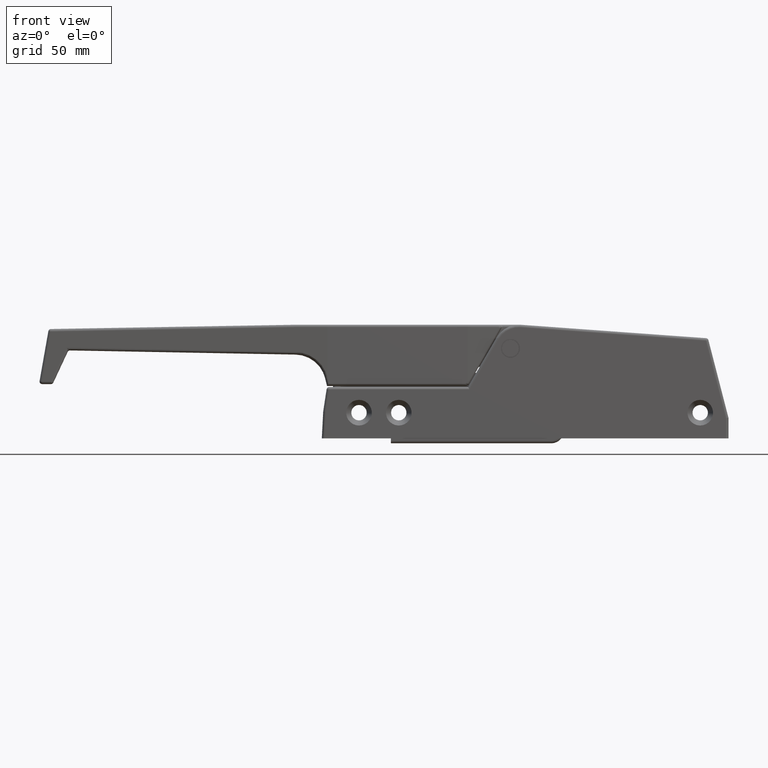
[diagram: clean part render]
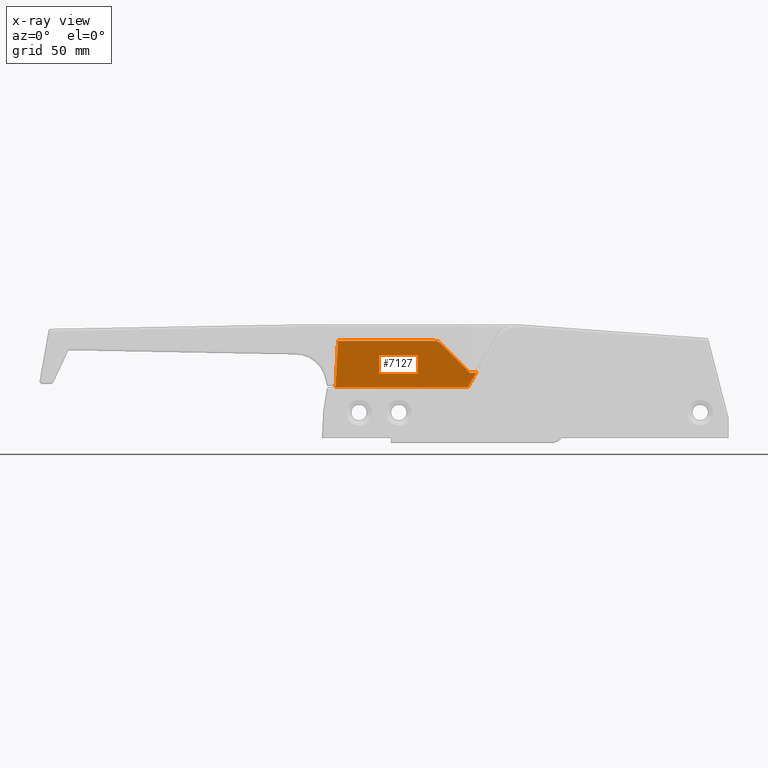
[diagram: x-ray — body ghosted, one internal face saturated and labeled with its STEP entity id]
A machine part, front view, then the same camera in x-ray: the body is ghosted and one INTERNAL B-rep face — a face not visible from any outside direction — is saturated and labeled: STEP entity #7127.
In plain terms, the highlighted planar face has unit normal (0, 1, 0).
Its self-contained STEP definition (entity closure, byte-faithful):
#339=PLANE('',#7760);
#709=FACE_OUTER_BOUND('',#1166,.T.);
#1166=EDGE_LOOP('',(#5902,#5903,#5904,#5905,#5906,#5907,#5908));
#1591=CIRCLE('',#7759,4.);
#2096=LINE('',#12212,#2735);
#2111=LINE('',#12258,#2750);
#2112=LINE('',#12260,#2751);
#2113=LINE('',#12262,#2752);
#2114=LINE('',#12264,#2753);
#2115=LINE('',#12265,#2754);
#2735=VECTOR('',#9343,16.0208152801767);
#2750=VECTOR('',#9388,37.30737356828);
#2751=VECTOR('',#9389,18.0247022279629);
#2752=VECTOR('',#9390,51.6463549267);
#2753=VECTOR('',#9391,6.35085296108442);
#2754=VECTOR('',#9392,2.41421356237001);
#3399=VERTEX_POINT('',#12209);
#3400=VERTEX_POINT('',#12211);
#3415=VERTEX_POINT('',#12253);
#3416=VERTEX_POINT('',#12257);
#3417=VERTEX_POINT('',#12259);
#3418=VERTEX_POINT('',#12261);
#3419=VERTEX_POINT('',#12263);
#4270=EDGE_CURVE('',#3399,#3400,#2096,.T.);
#4292=EDGE_CURVE('',#3415,#3399,#1591,.T.);
#4293=EDGE_CURVE('',#3416,#3415,#2111,.T.);
#4294=EDGE_CURVE('',#3417,#3416,#2112,.T.);
#4295=EDGE_CURVE('',#3418,#3417,#2113,.T.);
#4296=EDGE_CURVE('',#3418,#3419,#2114,.T.);
#4297=EDGE_CURVE('',#3419,#3400,#2115,.T.);
#5902=ORIENTED_EDGE('',*,*,#4270,.F.);
#5903=ORIENTED_EDGE('',*,*,#4292,.F.);
#5904=ORIENTED_EDGE('',*,*,#4293,.F.);
#5905=ORIENTED_EDGE('',*,*,#4294,.F.);
#5906=ORIENTED_EDGE('',*,*,#4295,.F.);
#5907=ORIENTED_EDGE('',*,*,#4296,.T.);
#5908=ORIENTED_EDGE('',*,*,#4297,.T.);
#7127=ADVANCED_FACE('',(#709),#339,.F.);
#7759=AXIS2_PLACEMENT_3D('',#12255,#9384,#9385);
#7760=AXIS2_PLACEMENT_3D('',#12256,#9386,#9387);
#9343=DIRECTION('',(-0.707106781186547,-0.707106781186547,0.));
#9384=DIRECTION('center_axis',(0.,0.,-1.));
#9385=DIRECTION('ref_axis',(1.,0.,0.));
#9386=DIRECTION('center_axis',(0.,0.,-1.));
#9387=DIRECTION('ref_axis',(0.,1.,0.));
#9388=DIRECTION('',(0.,-1.,0.));
#9389=DIRECTION('',(0.998629534754574,-0.0523359562429486,0.));
#9390=DIRECTION('',(0.,1.,0.));
#9391=DIRECTION('',(0.866025403784429,-0.500000000000017,0.));
#9392=DIRECTION('',(-1.17726575119E-14,1.,0.));
#12209=CARTESIAN_POINT('',(36.82842712475,82.16721420658,9.4));
#12211=CARTESIAN_POINT('',(25.5,70.83878708183,9.4));
#12212=CARTESIAN_POINT('',(36.82842712475,82.16721420658,9.4));
#12253=CARTESIAN_POINT('',(38.,84.99564133132,9.4));
#12255=CARTESIAN_POINT('Origin',(34.,84.99564133132,9.4));
#12256=CARTESIAN_POINT('Origin',(39.,68.42457351946,9.4));
#12257=CARTESIAN_POINT('',(38.,122.3030148996,9.4));
#12258=CARTESIAN_POINT('',(38.,122.3030148996,9.4));
#12259=CARTESIAN_POINT('',(20.,123.2463549267,9.4));
#12260=CARTESIAN_POINT('',(20.,123.2463549267,9.4));
#12261=CARTESIAN_POINT('',(20.,71.6,9.4));
#12262=CARTESIAN_POINT('',(20.,71.6,9.4));
#12263=CARTESIAN_POINT('',(25.5,68.42457351946,9.4));
#12264=CARTESIAN_POINT('',(20.,71.6,9.4));
#12265=CARTESIAN_POINT('',(25.5,68.42457351946,9.4));